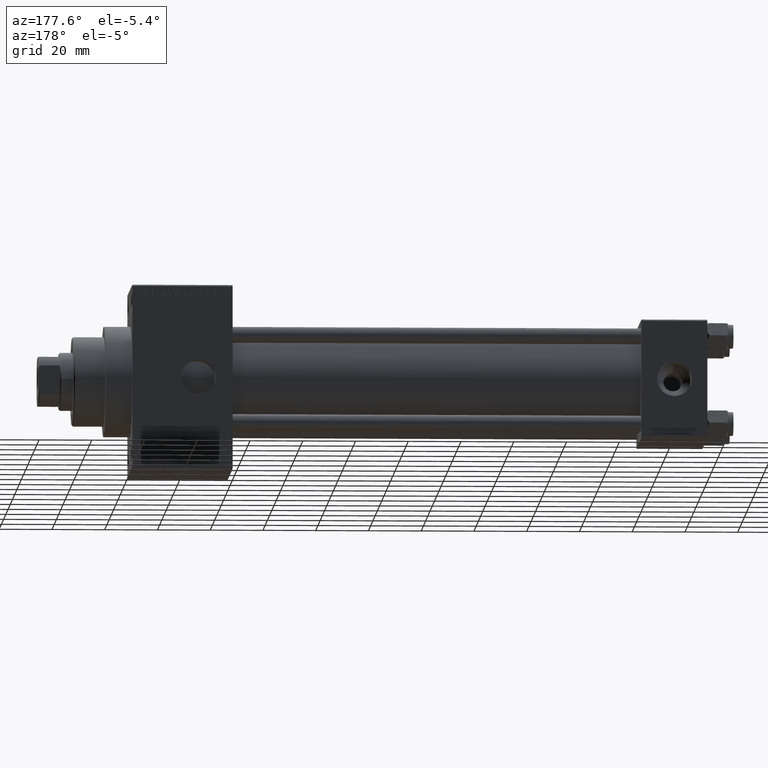
[diagram: clean part render]
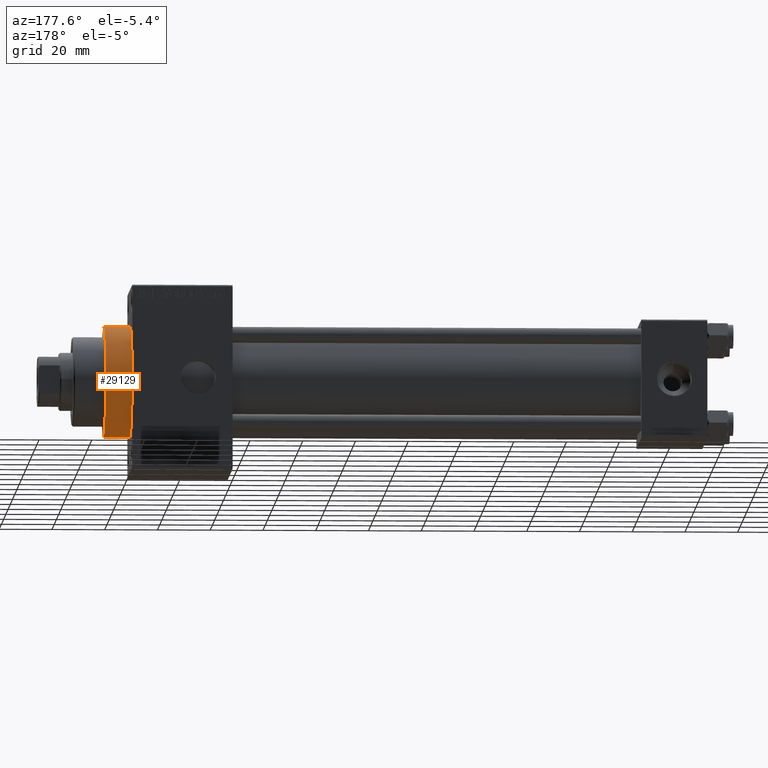
[diagram: same view with one face highlighted and labeled with its STEP entity id]
A machine part, auxiliary view. The second image highlights one B-rep face of the part: STEP entity #29129.
In plain terms, the highlighted cylindrical surface (partial cylindrical patch) has radius 21 mm, axis along (-1, -0, -0).
Its self-contained STEP definition (entity closure, byte-faithful):
#2788 = CARTESIAN_POINT ( 'NONE',  ( 218.0000000000000000, 0.000000000000000000, 21.00000000000000000 ) ) ;
#5162 = FACE_OUTER_BOUND ( 'NONE', #30047, .T. ) ;
#5302 = DIRECTION ( 'NONE',  ( 1.000000000000000000, 0.000000000000000000, 0.000000000000000000 ) ) ;
#6250 = VECTOR ( 'NONE', #40625, 1000.000000000000000 ) ;
#6339 = VERTEX_POINT ( 'NONE', #11791 ) ;
#10229 = EDGE_CURVE ( 'NONE', #48498, #6339, #34310, .T. ) ;
#10863 = LINE ( 'NONE', #41373, #6250 ) ;
#11791 = CARTESIAN_POINT ( 'NONE',  ( 218.0000000000000000, 2.571758278209441661E-15, -21.00000000000000000 ) ) ;
#11970 = AXIS2_PLACEMENT_3D ( 'NONE', #47452, #5302, #20431 ) ;
#12500 = DIRECTION ( 'NONE',  ( 0.000000000000000000, 0.000000000000000000, -1.000000000000000000 ) ) ;
#14058 = DIRECTION ( 'NONE',  ( -1.000000000000000000, -0.000000000000000000, -0.000000000000000000 ) ) ;
#14301 = CARTESIAN_POINT ( 'NONE',  ( 228.0000000000000000, 0.000000000000000000, 0.000000000000000000 ) ) ;
#16818 = CYLINDRICAL_SURFACE ( 'NONE', #20997, 21.00000000000000000 ) ;
#17493 = EDGE_CURVE ( 'NONE', #6339, #24138, #43140, .T. ) ;
#17501 = ORIENTED_EDGE ( 'NONE', *, *, #10229, .T. ) ;
#18547 = AXIS2_PLACEMENT_3D ( 'NONE', #39742, #36012, #12500 ) ;
#19090 = CIRCLE ( 'NONE', #11970, 21.00000000000000000 ) ;
#19459 = CARTESIAN_POINT ( 'NONE',  ( 228.0000000000000000, 2.571758278209441661E-15, -21.00000000000000000 ) ) ;
#20431 = DIRECTION ( 'NONE',  ( 0.000000000000000000, 0.000000000000000000, -1.000000000000000000 ) ) ;
#20997 = AXIS2_PLACEMENT_3D ( 'NONE', #14301, #14058, #39616 ) ;
#22360 = VECTOR ( 'NONE', #41010, 1000.000000000000000 ) ;
#24138 = VERTEX_POINT ( 'NONE', #2788 ) ;
#29129 = ADVANCED_FACE ( 'NONE', ( #5162 ), #16818, .T. ) ;
#30047 = EDGE_LOOP ( 'NONE', ( #43423, #17501, #45786, #38127 ) ) ;
#30147 = CARTESIAN_POINT ( 'NONE',  ( 228.0000000000000000, 0.000000000000000000, 21.00000000000000000 ) ) ;
#30830 = CARTESIAN_POINT ( 'NONE',  ( 228.0000000000000000, 2.571758278209441661E-15, -21.00000000000000000 ) ) ;
#32684 = VERTEX_POINT ( 'NONE', #30147 ) ;
#34310 = LINE ( 'NONE', #30830, #22360 ) ;
#36012 = DIRECTION ( 'NONE',  ( 1.000000000000000000, 0.000000000000000000, 0.000000000000000000 ) ) ;
#38127 = ORIENTED_EDGE ( 'NONE', *, *, #41590, .F. ) ;
#39616 = DIRECTION ( 'NONE',  ( 0.000000000000000000, 0.000000000000000000, 1.000000000000000000 ) ) ;
#39742 = CARTESIAN_POINT ( 'NONE',  ( 218.0000000000000000, 0.000000000000000000, 0.000000000000000000 ) ) ;
#40625 = DIRECTION ( 'NONE',  ( -1.000000000000000000, -0.000000000000000000, -0.000000000000000000 ) ) ;
#41010 = DIRECTION ( 'NONE',  ( -1.000000000000000000, -0.000000000000000000, -0.000000000000000000 ) ) ;
#41373 = CARTESIAN_POINT ( 'NONE',  ( 228.0000000000000000, 0.000000000000000000, 21.00000000000000000 ) ) ;
#41590 = EDGE_CURVE ( 'NONE', #32684, #24138, #10863, .T. ) ;
#43140 = CIRCLE ( 'NONE', #18547, 21.00000000000000000 ) ;
#43423 = ORIENTED_EDGE ( 'NONE', *, *, #48717, .F. ) ;
#45786 = ORIENTED_EDGE ( 'NONE', *, *, #17493, .T. ) ;
#47452 = CARTESIAN_POINT ( 'NONE',  ( 228.0000000000000000, 0.000000000000000000, 0.000000000000000000 ) ) ;
#48498 = VERTEX_POINT ( 'NONE', #19459 ) ;
#48717 = EDGE_CURVE ( 'NONE', #48498, #32684, #19090, .T. ) ;